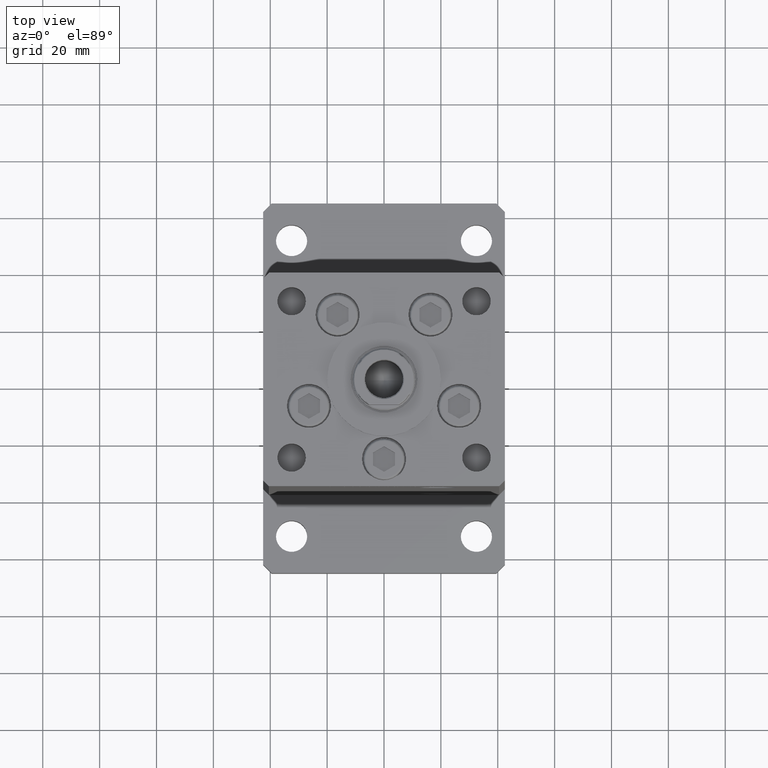
[diagram: clean part render]
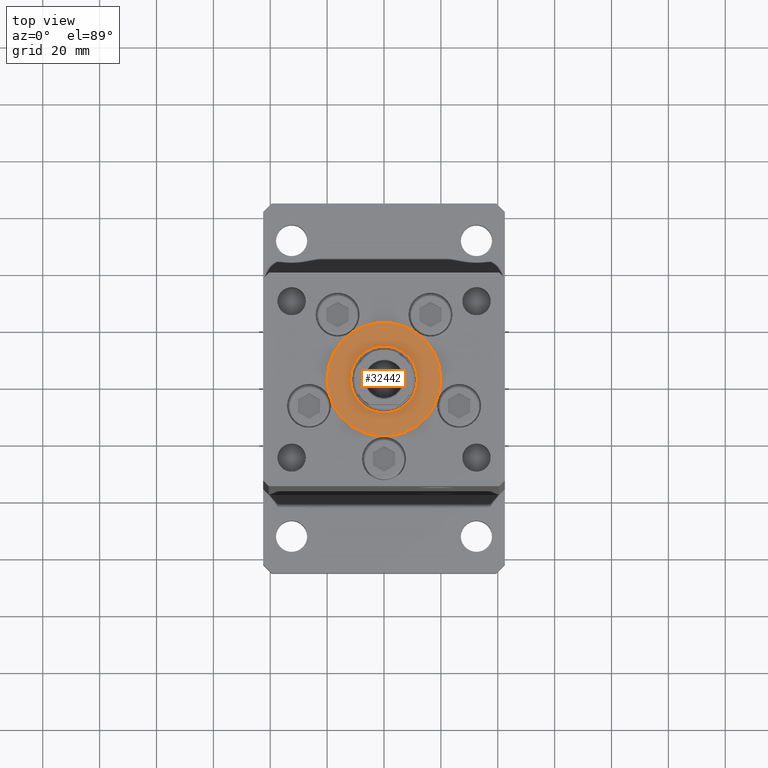
[diagram: same view with one face highlighted and labeled with its STEP entity id]
A machine part, top view. The second image highlights one B-rep face of the part: STEP entity #32442.
In plain terms, the highlighted planar face has unit normal (0, 0, 1).
Its self-contained STEP definition (entity closure, byte-faithful):
#746 = CARTESIAN_POINT ( 'NONE',  ( 20.00000000000000000, -4.489600305612522259E-15, 2.000000000000000000 ) ) ;
#1040 = PLANE ( 'NONE',  #26313 ) ;
#1111 = CIRCLE ( 'NONE', #28879, 20.00000000000000000 ) ;
#1666 = EDGE_CURVE ( 'NONE', #6670, #52398, #15495, .T. ) ;
#2106 = CARTESIAN_POINT ( 'NONE',  ( 0.000000000000000000, -6.938893903907228378E-15, 2.000000000000000000 ) ) ;
#2763 = CARTESIAN_POINT ( 'NONE',  ( 0.000000000000000000, -6.938893903907228378E-15, 2.000000000000000000 ) ) ;
#3005 = CARTESIAN_POINT ( 'NONE',  ( 0.000000000000000000, -6.938893903907228378E-15, 2.000000000000000000 ) ) ;
#5131 = FACE_BOUND ( 'NONE', #30844, .T. ) ;
#6670 = VERTEX_POINT ( 'NONE', #41735 ) ;
#8119 = AXIS2_PLACEMENT_3D ( 'NONE', #21230, #29374, #46463 ) ;
#15446 = ORIENTED_EDGE ( 'NONE', *, *, #32651, .F. ) ;
#15495 = CIRCLE ( 'NONE', #36346, 11.75000000000000178 ) ;
#18190 = CARTESIAN_POINT ( 'NONE',  ( -20.00000000000000000, -6.938893903907228378E-15, 2.000000000000000000 ) ) ;
#18524 = CIRCLE ( 'NONE', #8119, 20.00000000000000000 ) ;
#19145 = ORIENTED_EDGE ( 'NONE', *, *, #31716, .T. ) ;
#19330 = DIRECTION ( 'NONE',  ( 0.000000000000000000, 0.000000000000000000, 1.000000000000000000 ) ) ;
#20471 = EDGE_LOOP ( 'NONE', ( #21870, #19145 ) ) ;
#21230 = CARTESIAN_POINT ( 'NONE',  ( 0.000000000000000000, -6.938893903907228378E-15, 2.000000000000000000 ) ) ;
#21870 = ORIENTED_EDGE ( 'NONE', *, *, #33181, .T. ) ;
#21895 = DIRECTION ( 'NONE',  ( 1.000000000000000000, 0.000000000000000000, 0.000000000000000000 ) ) ;
#24431 = DIRECTION ( 'NONE',  ( 1.000000000000000000, 0.000000000000000000, 0.000000000000000000 ) ) ;
#25544 = ORIENTED_EDGE ( 'NONE', *, *, #1666, .F. ) ;
#25946 = CARTESIAN_POINT ( 'NONE',  ( -11.75000000000000178, -5.499933914909088809E-15, 2.000000000000000000 ) ) ;
#26313 = AXIS2_PLACEMENT_3D ( 'NONE', #2106, #27633, #47720 ) ;
#27633 = DIRECTION ( 'NONE',  ( 0.000000000000000000, 0.000000000000000000, 1.000000000000000000 ) ) ;
#28879 = AXIS2_PLACEMENT_3D ( 'NONE', #2763, #19330, #52726 ) ;
#29374 = DIRECTION ( 'NONE',  ( 0.000000000000000000, 0.000000000000000000, 1.000000000000000000 ) ) ;
#30844 = EDGE_LOOP ( 'NONE', ( #25544, #15446 ) ) ;
#31716 = EDGE_CURVE ( 'NONE', #51841, #48838, #1111, .T. ) ;
#32442 = ADVANCED_FACE ( 'NONE', ( #5131, #38245 ), #1040, .T. ) ;
#32651 = EDGE_CURVE ( 'NONE', #52398, #6670, #41929, .T. ) ;
#33181 = EDGE_CURVE ( 'NONE', #48838, #51841, #18524, .T. ) ;
#34141 = AXIS2_PLACEMENT_3D ( 'NONE', #38186, #50142, #21895 ) ;
#35849 = DIRECTION ( 'NONE',  ( 0.000000000000000000, 0.000000000000000000, 1.000000000000000000 ) ) ;
#36346 = AXIS2_PLACEMENT_3D ( 'NONE', #3005, #35849, #24431 ) ;
#38186 = CARTESIAN_POINT ( 'NONE',  ( 0.000000000000000000, -6.938893903907228378E-15, 2.000000000000000000 ) ) ;
#38245 = FACE_OUTER_BOUND ( 'NONE', #20471, .T. ) ;
#41735 = CARTESIAN_POINT ( 'NONE',  ( 11.75000000000000178, -6.938893903907228378E-15, 2.000000000000000000 ) ) ;
#41929 = CIRCLE ( 'NONE', #34141, 11.75000000000000178 ) ;
#46463 = DIRECTION ( 'NONE',  ( 1.000000000000000000, 0.000000000000000000, 0.000000000000000000 ) ) ;
#47720 = DIRECTION ( 'NONE',  ( 1.000000000000000000, 0.000000000000000000, -0.000000000000000000 ) ) ;
#48838 = VERTEX_POINT ( 'NONE', #18190 ) ;
#50142 = DIRECTION ( 'NONE',  ( 0.000000000000000000, 0.000000000000000000, 1.000000000000000000 ) ) ;
#51841 = VERTEX_POINT ( 'NONE', #746 ) ;
#52398 = VERTEX_POINT ( 'NONE', #25946 ) ;
#52726 = DIRECTION ( 'NONE',  ( 1.000000000000000000, 0.000000000000000000, 0.000000000000000000 ) ) ;